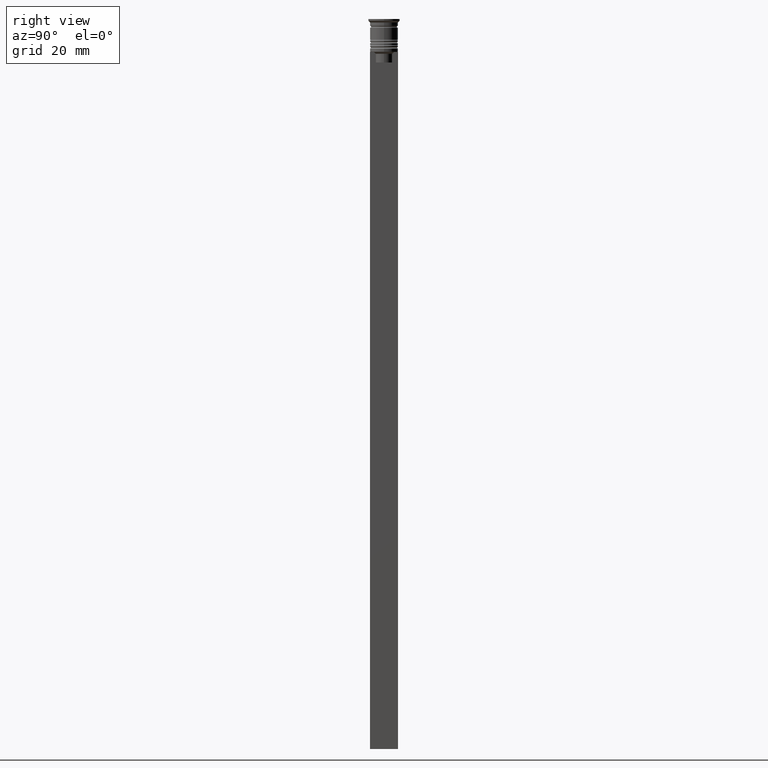
[diagram: clean part render]
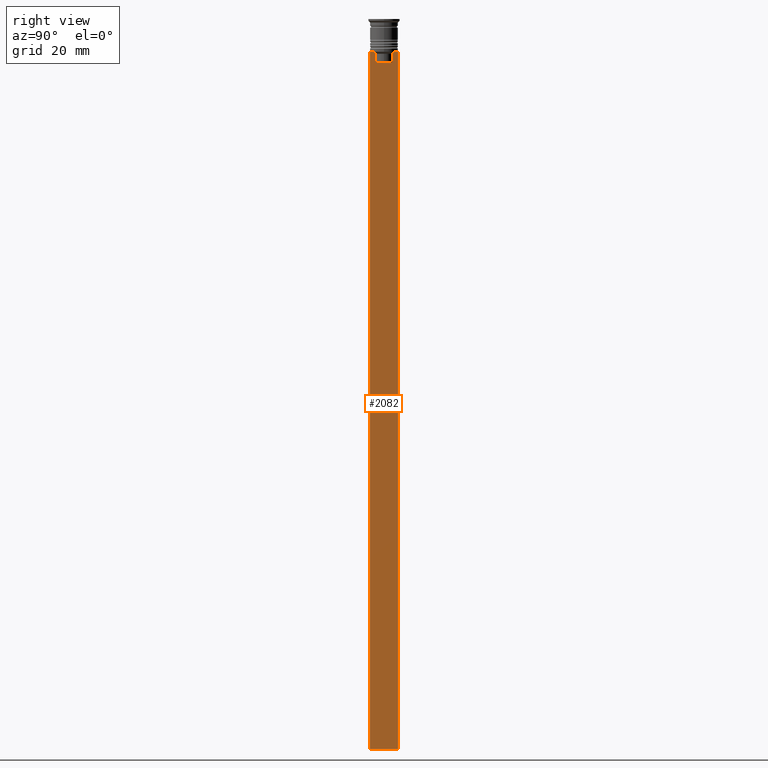
[diagram: same view with one face highlighted and labeled with its STEP entity id]
A machine part, right view. The second image highlights one B-rep face of the part: STEP entity #2082.
In plain terms, the highlighted planar face has unit normal (-1, 0, 0).
Its self-contained STEP definition (entity closure, byte-faithful):
#14 = LINE ( 'NONE', #1009, #263 ) ;
#39 = EDGE_LOOP ( 'NONE', ( #2375, #434, #117, #1037, #1171, #1667, #2128, #2076, #1979, #2334, #580, #2024 ) ) ;
#62 = LINE ( 'NONE', #671, #1040 ) ;
#83 = CARTESIAN_POINT ( 'NONE',  ( 0.5000000000000000000, -2.517408374291112416, -9.833662228483172285 ) ) ;
#91 = CARTESIAN_POINT ( 'NONE',  ( 0.5000000000000000000, -2.856571371417138572, -9.500000000000000000 ) ) ;
#107 = CARTESIAN_POINT ( 'NONE',  ( 0.5000000000000000000, -2.347338918861097135, 0.000000000000000000 ) ) ;
#114 = CARTESIAN_POINT ( 'NONE',  ( 0.5000000000000000000, 2.399999999999996803, -12.50000000000000000 ) ) ;
#117 = ORIENTED_EDGE ( 'NONE', *, *, #1301, .T. ) ;
#128 = EDGE_CURVE ( 'NONE', #157, #1264, #1330, .T. ) ;
#133 = VERTEX_POINT ( 'NONE', #1122 ) ;
#157 = VERTEX_POINT ( 'NONE', #2456 ) ;
#218 = B_SPLINE_CURVE_WITH_KNOTS ( 'NONE', 3,
 ( #1084, #699, #2454, #1881 ),
 .UNSPECIFIED., .F., .F.,
 ( 4, 4 ),
 ( 0.004956812174141191595, 0.005670477137898149653 ),
 .UNSPECIFIED. ) ;
#221 = CARTESIAN_POINT ( 'NONE',  ( 0.5000000000000000000, -2.347338918861097135, -10.00000000000000000 ) ) ;
#254 = DIRECTION ( 'NONE',  ( 0.000000000000000000, 1.000000000000000000, 0.000000000000000000 ) ) ;
#256 = VECTOR ( 'NONE', #499, 1000.000000000000000 ) ;
#263 = VECTOR ( 'NONE', #1368, 1000.000000000000000 ) ;
#321 = VERTEX_POINT ( 'NONE', #2250 ) ;
#327 = CARTESIAN_POINT ( 'NONE',  ( 0.5000000000000000000, 2.347338918861097135, -10.00000000000000000 ) ) ;
#333 = EDGE_CURVE ( 'NONE', #915, #1942, #1865, .T. ) ;
#335 = VECTOR ( 'NONE', #533, 1000.000000000000000 ) ;
#341 = DIRECTION ( 'NONE',  ( 0.000000000000000000, 0.000000000000000000, -1.000000000000000000 ) ) ;
#390 = EDGE_CURVE ( 'NONE', #1264, #321, #1674, .T. ) ;
#408 = CARTESIAN_POINT ( 'NONE',  ( 0.5000000000000000000, 2.347338918861097135, -12.50000000000000000 ) ) ;
#434 = ORIENTED_EDGE ( 'NONE', *, *, #2361, .T. ) ;
#435 = VECTOR ( 'NONE', #341, 1000.000000000000000 ) ;
#442 = VERTEX_POINT ( 'NONE', #91 ) ;
#499 = DIRECTION ( 'NONE',  ( -0.000000000000000000, -0.000000000000000000, 1.000000000000000000 ) ) ;
#533 = DIRECTION ( 'NONE',  ( 0.000000000000000000, -1.000000000000000000, 0.000000000000000000 ) ) ;
#580 = ORIENTED_EDGE ( 'NONE', *, *, #2409, .F. ) ;
#671 = CARTESIAN_POINT ( 'NONE',  ( 0.5000000000000000000, -4.000000000000000000, -9.500000000000000000 ) ) ;
#674 = CARTESIAN_POINT ( 'NONE',  ( 0.5000000000000000000, -4.000000000000000000, -209.5000000000000284 ) ) ;
#687 = LINE ( 'NONE', #2246, #1116 ) ;
#689 = VERTEX_POINT ( 'NONE', #408 ) ;
#699 = CARTESIAN_POINT ( 'NONE',  ( 0.5000000000000000000, 2.687094542495898075, -9.666938847453439010 ) ) ;
#716 = CARTESIAN_POINT ( 'NONE',  ( 0.5000000000000000000, -2.347338918861097135, -12.50000000000000000 ) ) ;
#835 = AXIS2_PLACEMENT_3D ( 'NONE', #999, #2377, #1799 ) ;
#860 = EDGE_CURVE ( 'NONE', #442, #157, #1203, .T. ) ;
#907 = CARTESIAN_POINT ( 'NONE',  ( 0.5000000000000000000, 3.867815921162741422, -9.500000000000000000 ) ) ;
#915 = VERTEX_POINT ( 'NONE', #716 ) ;
#999 = CARTESIAN_POINT ( 'NONE',  ( 0.5000000000000000000, -4.000000000000000000, -1.437742251701450202 ) ) ;
#1009 = CARTESIAN_POINT ( 'NONE',  ( 0.5000000000000000000, -4.000000000000000000, -9.500000000000000000 ) ) ;
#1011 = FACE_OUTER_BOUND ( 'NONE', #39, .T. ) ;
#1037 = ORIENTED_EDGE ( 'NONE', *, *, #1997, .T. ) ;
#1040 = VECTOR ( 'NONE', #1269, 1000.000000000000000 ) ;
#1045 = CARTESIAN_POINT ( 'NONE',  ( 0.5000000000000000000, -4.000000000000000000, -9.500000000000000000 ) ) ;
#1062 = DIRECTION ( 'NONE',  ( 0.000000000000000000, 0.000000000000000000, -1.000000000000000000 ) ) ;
#1076 = VECTOR ( 'NONE', #254, 1000.000000000000000 ) ;
#1084 = CARTESIAN_POINT ( 'NONE',  ( 0.5000000000000000000, 2.856571371417138572, -9.500000000000000000 ) ) ;
#1095 = DIRECTION ( 'NONE',  ( 0.000000000000000000, -1.000000000000000000, 0.000000000000000000 ) ) ;
#1116 = VECTOR ( 'NONE', #1679, 1000.000000000000000 ) ;
#1122 = CARTESIAN_POINT ( 'NONE',  ( 0.5000000000000000000, 4.000000000000000000, -209.5000000000000284 ) ) ;
#1171 = ORIENTED_EDGE ( 'NONE', *, *, #333, .T. ) ;
#1177 = DIRECTION ( 'NONE',  ( 0.000000000000000000, -1.000000000000000000, 0.000000000000000000 ) ) ;
#1194 = EDGE_CURVE ( 'NONE', #1942, #442, #2332, .T. ) ;
#1203 = LINE ( 'NONE', #2156, #2297 ) ;
#1241 = VECTOR ( 'NONE', #1095, 1000.000000000000000 ) ;
#1248 = CARTESIAN_POINT ( 'NONE',  ( 0.5000000000000000000, -2.687095498514037839, -9.666937905752043037 ) ) ;
#1264 = VERTEX_POINT ( 'NONE', #1045 ) ;
#1269 = DIRECTION ( 'NONE',  ( 0.000000000000000000, -1.000000000000000000, 0.000000000000000000 ) ) ;
#1273 = CARTESIAN_POINT ( 'NONE',  ( 0.5000000000000000000, 2.856571371417138572, -9.500000000000000000 ) ) ;
#1297 = EDGE_CURVE ( 'NONE', #321, #133, #2442, .T. ) ;
#1301 = EDGE_CURVE ( 'NONE', #1468, #689, #687, .T. ) ;
#1308 = CARTESIAN_POINT ( 'NONE',  ( 0.5000000000000000000, 4.000000000000000000, -1.437742251701450202 ) ) ;
#1319 = VERTEX_POINT ( 'NONE', #1273 ) ;
#1330 = LINE ( 'NONE', #1680, #335 ) ;
#1368 = DIRECTION ( 'NONE',  ( 0.000000000000000000, -1.000000000000000000, 0.000000000000000000 ) ) ;
#1372 = PLANE ( 'NONE',  #835 ) ;
#1453 = CARTESIAN_POINT ( 'NONE',  ( 0.5000000000000000000, -2.856571371417138572, -9.500000000000000000 ) ) ;
#1468 = VERTEX_POINT ( 'NONE', #327 ) ;
#1507 = CARTESIAN_POINT ( 'NONE',  ( 0.5000000000000000000, -2.347338918861097135, -10.00000000000000000 ) ) ;
#1560 = EDGE_CURVE ( 'NONE', #1703, #1957, #14, .T. ) ;
#1667 = ORIENTED_EDGE ( 'NONE', *, *, #1194, .T. ) ;
#1674 = LINE ( 'NONE', #2449, #2049 ) ;
#1679 = DIRECTION ( 'NONE',  ( 0.000000000000000000, 0.000000000000000000, -1.000000000000000000 ) ) ;
#1680 = CARTESIAN_POINT ( 'NONE',  ( 0.5000000000000000000, -4.000000000000000000, -9.500000000000000000 ) ) ;
#1682 = EDGE_CURVE ( 'NONE', #1957, #1319, #62, .T. ) ;
#1703 = VERTEX_POINT ( 'NONE', #1841 ) ;
#1723 = LINE ( 'NONE', #114, #1241 ) ;
#1799 = DIRECTION ( 'NONE',  ( 0.000000000000000000, 0.000000000000000000, 1.000000000000000000 ) ) ;
#1841 = CARTESIAN_POINT ( 'NONE',  ( 0.5000000000000000000, 4.000000000000000000, -9.500000000000000000 ) ) ;
#1865 = LINE ( 'NONE', #107, #256 ) ;
#1870 = LINE ( 'NONE', #1308, #435 ) ;
#1881 = CARTESIAN_POINT ( 'NONE',  ( 0.5000000000000000000, 2.347338918861097135, -10.00000000000000000 ) ) ;
#1942 = VERTEX_POINT ( 'NONE', #1507 ) ;
#1957 = VERTEX_POINT ( 'NONE', #907 ) ;
#1979 = ORIENTED_EDGE ( 'NONE', *, *, #390, .T. ) ;
#1997 = EDGE_CURVE ( 'NONE', #689, #915, #1723, .T. ) ;
#2024 = ORIENTED_EDGE ( 'NONE', *, *, #1560, .T. ) ;
#2049 = VECTOR ( 'NONE', #1062, 1000.000000000000000 ) ;
#2076 = ORIENTED_EDGE ( 'NONE', *, *, #128, .T. ) ;
#2082 = ADVANCED_FACE ( 'NONE', ( #1011 ), #1372, .F. ) ;
#2128 = ORIENTED_EDGE ( 'NONE', *, *, #860, .T. ) ;
#2156 = CARTESIAN_POINT ( 'NONE',  ( 0.5000000000000000000, -4.000000000000000000, -9.500000000000000000 ) ) ;
#2246 = CARTESIAN_POINT ( 'NONE',  ( 0.5000000000000000000, 2.347338918861097135, 0.000000000000000000 ) ) ;
#2250 = CARTESIAN_POINT ( 'NONE',  ( 0.5000000000000000000, -4.000000000000000000, -209.5000000000000284 ) ) ;
#2297 = VECTOR ( 'NONE', #1177, 1000.000000000000000 ) ;
#2332 = B_SPLINE_CURVE_WITH_KNOTS ( 'NONE', 3,
 ( #221, #83, #1248, #1453 ),
 .UNSPECIFIED., .F., .F.,
 ( 4, 4 ),
 ( 0.01178336557230038467, 0.01249758354768160280 ),
 .UNSPECIFIED. ) ;
#2334 = ORIENTED_EDGE ( 'NONE', *, *, #1297, .T. ) ;
#2361 = EDGE_CURVE ( 'NONE', #1319, #1468, #218, .T. ) ;
#2375 = ORIENTED_EDGE ( 'NONE', *, *, #1682, .T. ) ;
#2377 = DIRECTION ( 'NONE',  ( -1.000000000000000000, 0.000000000000000000, 0.000000000000000000 ) ) ;
#2409 = EDGE_CURVE ( 'NONE', #1703, #133, #1870, .T. ) ;
#2442 = LINE ( 'NONE', #674, #1076 ) ;
#2449 = CARTESIAN_POINT ( 'NONE',  ( 0.5000000000000000000, -4.000000000000000000, -1.437742251701450202 ) ) ;
#2454 = CARTESIAN_POINT ( 'NONE',  ( 0.5000000000000000000, 2.517407211010872281, -9.833663366238582171 ) ) ;
#2456 = CARTESIAN_POINT ( 'NONE',  ( 0.5000000000000000000, -3.867815921162741422, -9.500000000000000000 ) ) ;